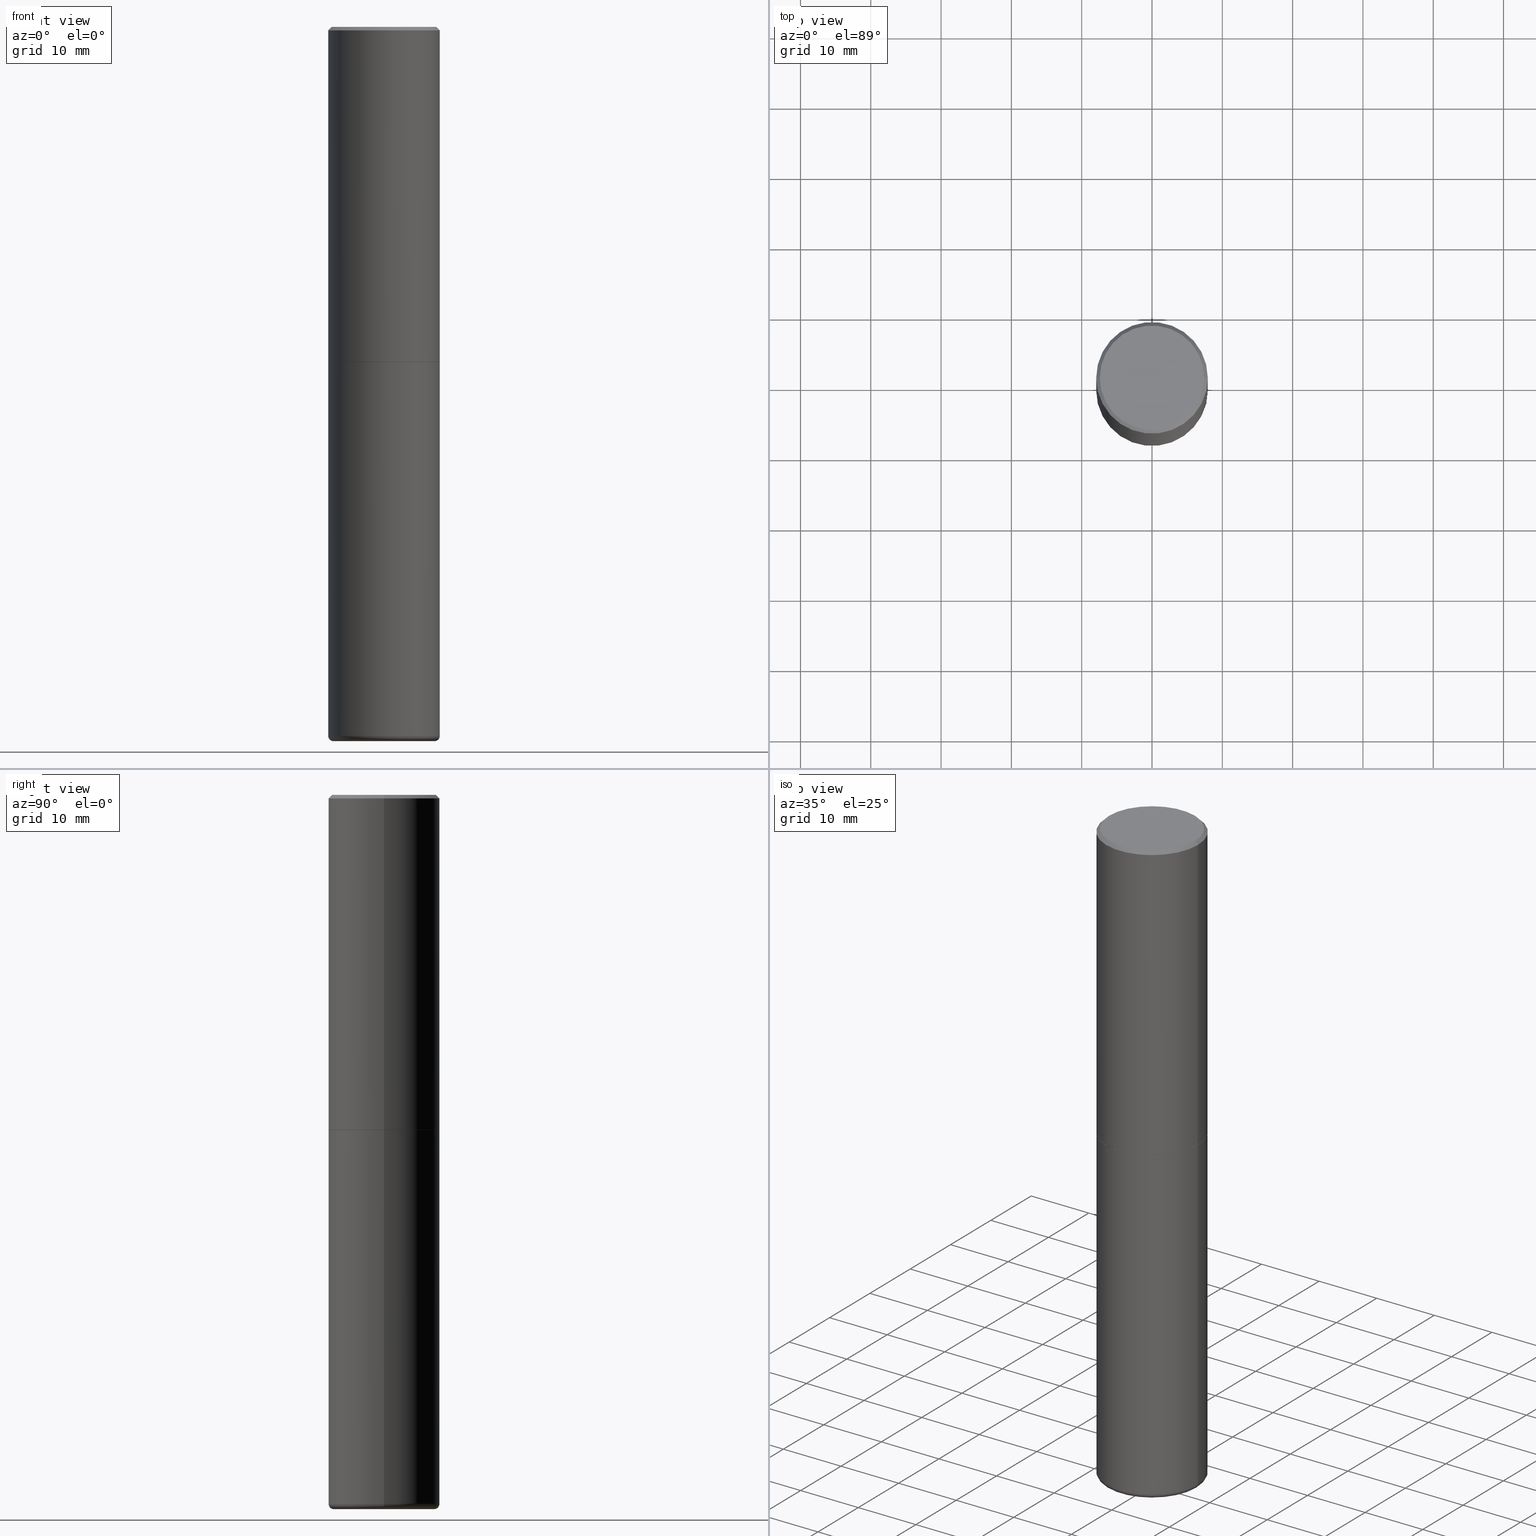
[diagram: canonical four-view strip — front | top / right | iso, engineering-drawing reading convention]
A machine part, canonical four-view strip (front | top / right | iso — engineering-drawing reading convention). The complete STEP part file that produces these views, byte-faithful:
ISO-10303-21;
HEADER;
FILE_DESCRIPTION (( 'STEP AP203' ),
    '1' );
FILE_NAME ('33473.STEP',
    '2022-11-02T20:13:39',
    ( '' ),
    ( '' ),
    'SwSTEP 2.0',
    'SolidWorks 2022',
    '' );
FILE_SCHEMA (( 'CONFIG_CONTROL_DESIGN' ));
ENDSEC;

DATA;
#1 = AXIS2_PLACEMENT_3D ( 'NONE', #83, #160, #425 ) ;
#2 = SECURITY_CLASSIFICATION ( '', '', #232 ) ;
#3 = DATE_AND_TIME ( #228, #132 ) ;
#4 = CYLINDRICAL_SURFACE ( 'NONE', #440, 0.3125000000000000000 ) ;
#5 = DIRECTION ( 'NONE',  ( 2.445468806185136597E-29, -3.491481338843145583E-15, -1.000000000000000000 ) ) ;
#6 = CARTESIAN_POINT ( 'NONE',  ( 0.3125000000000000000, -8.725211865769012469E-15, -1.874000000000000110 ) ) ;
#7 = ORIENTED_EDGE ( 'NONE', *, *, #211, .T. ) ;
#8 = CC_DESIGN_DATE_AND_TIME_ASSIGNMENT ( #3, #390, ( #338 ) ) ;
#9 = DIRECTION ( 'NONE',  ( 2.445468806185136597E-29, -3.491481338843145583E-15, -1.000000000000000000 ) ) ;
#10 = VECTOR ( 'NONE', #282, 39.37007874015748854 ) ;
#11 = ORIENTED_EDGE ( 'NONE', *, *, #478, .F. ) ;
#12 = VECTOR ( 'NONE', #355, 39.37007874015748143 ) ;
#13 = DIRECTION ( 'NONE',  ( -1.000000000000000000, 6.982962677686263555E-15, 0.000000000000000000 ) ) ;
#14 = CARTESIAN_POINT ( 'NONE',  ( 9.708513954033757613E-29, -1.386118490355461518E-14, -3.970001142308074993 ) ) ;
#15 = DIRECTION ( 'NONE',  ( 1.000000000000000000, -6.982962677686262766E-15, 0.000000000000000000 ) ) ;
#16 = CIRCLE ( 'NONE', #90, 0.3125000000000000000 ) ;
#17 = VECTOR ( 'NONE', #173, 39.37007874015748143 ) ;
#18 = EDGE_LOOP ( 'NONE', ( #43, #33, #41, #244 ) ) ;
#19 = DIRECTION ( 'NONE',  ( -2.445468806185136597E-29, 3.491481338843145583E-15, 1.000000000000000000 ) ) ;
#20 = EDGE_CURVE ( 'NONE', #361, #446, #470, .T. ) ;
#21 = VERTEX_POINT ( 'NONE', #6 ) ;
#22 = CONICAL_SURFACE ( 'NONE', #256, 0.3114999999999999991, 0.7853981633974141952 ) ;
#23 = ADVANCED_FACE ( 'NONE', ( #159 ), #315, .F. ) ;
#24 = CC_DESIGN_SECURITY_CLASSIFICATION ( #2, ( #146 ) ) ;
#25 = EDGE_LOOP ( 'NONE', ( #151, #26, #77 ) ) ;
#26 = ORIENTED_EDGE ( 'NONE', *, *, #424, .T. ) ;
#27 = CARTESIAN_POINT ( 'NONE',  ( 0.3114999999999999991, -8.721720384430171040E-15, -1.875000000000000000 ) ) ;
#28 = ORIENTED_EDGE ( 'NONE', *, *, #291, .T. ) ;
#29 = APPLICATION_PROTOCOL_DEFINITION ( 'international standard', 'config_control_design', 1994, #330 ) ;
#30 = AXIS2_PLACEMENT_3D ( 'NONE', #64, #31, #35 ) ;
#31 = DIRECTION ( 'NONE',  ( -2.445468806185136597E-29, 3.491481338843145583E-15, 1.000000000000000000 ) ) ;
#32 = DIRECTION ( 'NONE',  ( -1.000000000000000000, 6.982962677686267499E-15, 0.000000000000000000 ) ) ;
#33 = ORIENTED_EDGE ( 'NONE', *, *, #181, .T. ) ;
#34 = CALENDAR_DATE ( 2022, 2, 11 ) ;
#35 = DIRECTION ( 'NONE',  ( 1.000000000000000000, -6.982962677686269077E-15, 0.000000000000000000 ) ) ;
#36 = EDGE_CURVE ( 'NONE', #461, #135, #275, .T. ) ;
#37 = ORIENTED_EDGE ( 'NONE', *, *, #351, .T. ) ;
#38 = DIRECTION ( 'NONE',  ( 0.000000000000000000, 0.000000000000000000, 1.000000000000000000 ) ) ;
#39 = ADVANCED_FACE ( 'NONE', ( #438 ), #22, .T. ) ;
#40 = ADVANCED_FACE ( 'NONE', ( #252 ), #190, .F. ) ;
#41 = ORIENTED_EDGE ( 'NONE', *, *, #324, .T. ) ;
#42 = DIRECTION ( 'NONE',  ( -2.445468806185136597E-29, 3.491481338843145583E-15, 1.000000000000000000 ) ) ;
#43 = ORIENTED_EDGE ( 'NONE', *, *, #291, .F. ) ;
#44 = DIRECTION ( 'NONE',  ( 2.445468806185136597E-29, -3.491481338843145583E-15, -1.000000000000000000 ) ) ;
#45 = CARTESIAN_POINT ( 'NONE',  ( 9.781163893102952940E-29, -1.396490976231651766E-14, -3.999709122587949750 ) ) ;
#46 = EDGE_LOOP ( 'NONE', ( #113, #28 ) ) ;
#47 = VECTOR ( 'NONE', #240, 39.37007874015748143 ) ;
#48 = CARTESIAN_POINT ( 'NONE',  ( -0.2822382039350491700, -1.180062057703830648E-14, -4.000000000000000000 ) ) ;
#49 = ADVANCED_FACE ( 'NONE', ( #91 ), #376, .T. ) ;
#50 = APPROVAL ( #387, 'UNSPECIFIED' ) ;
#51 = MANIFOLD_SOLID_BREP ( 'Body-Move/Copy2[1]', #61 ) ;
#52 = DIRECTION ( 'NONE',  ( -2.445468806185136597E-29, 3.491481338843145583E-15, 1.000000000000000000 ) ) ;
#53 = ORIENTED_EDGE ( 'NONE', *, *, #283, .T. ) ;
#54 = VECTOR ( 'NONE', #227, 39.37007874015748854 ) ;
#55 = DIRECTION ( 'NONE',  ( -6.982962677686266711E-15, -1.000000000000000000, 3.491481338843145583E-15 ) ) ;
#56 = APPROVAL_PERSON_ORGANIZATION ( #417, #141, #484 ) ;
#57 = CIRCLE ( 'NONE', #433, 0.3114999999999999991 ) ;
#58 = ORIENTED_EDGE ( 'NONE', *, *, #424, .F. ) ;
#59 = DIRECTION ( 'NONE',  ( -2.445468806185136597E-29, 3.491481338843145583E-15, 1.000000000000000000 ) ) ;
#60 = ADVANCED_FACE ( 'NONE', ( #436 ), #99, .F. ) ;
#61 = CLOSED_SHELL ( 'NONE', ( #297, #409, #274, #40, #140, #60, #459, #49, #447 ) ) ;
#62 = EDGE_LOOP ( 'NONE', ( #58, #407, #323 ) ) ;
#63 = AXIS2_PLACEMENT_3D ( 'NONE', #375, #321, #491 ) ;
#64 = CARTESIAN_POINT ( 'NONE',  ( 9.708513954033757613E-29, -1.386118490355461518E-14, -3.970001142308074993 ) ) ;
#65 = EDGE_CURVE ( 'NONE', #446, #96, #242, .T. ) ;
#66 = PERSON_AND_ORGANIZATION_ROLE ( 'classification_officer' ) ;
#67 = PLANE ( 'NONE',  #342 ) ;
#68 = FACE_OUTER_BOUND ( 'NONE', #88, .T. ) ;
#69 = ORIENTED_EDGE ( 'NONE', *, *, #312, .T. ) ;
#70 = APPROVAL_DATE_TIME ( #345, #141 ) ;
#71 = EDGE_CURVE ( 'NONE', #185, #329, #57, .T. ) ;
#72 = CIRCLE ( 'NONE', #363, 0.02999999999999978378 ) ;
#73 = AXIS2_PLACEMENT_3D ( 'NONE', #301, #38, #150 ) ;
#74 = DIRECTION ( 'NONE',  ( 2.445468806185136597E-29, -3.491481338843145583E-15, -1.000000000000000000 ) ) ;
#75 = CC_DESIGN_PERSON_AND_ORGANIZATION_ASSIGNMENT ( #308, #199, ( #335 ) ) ;
#76 = DIRECTION ( 'NONE',  ( -2.445468806185136877E-29, 3.491481338843145188E-15, 1.000000000000000000 ) ) ;
#77 = ORIENTED_EDGE ( 'NONE', *, *, #65, .F. ) ;
#78 = PERSON_AND_ORGANIZATION ( #418, #371 ) ;
#79 = FACE_OUTER_BOUND ( 'NONE', #139, .T. ) ;
#80 = ORIENTED_EDGE ( 'NONE', *, *, #283, .F. ) ;
#81 = EDGE_CURVE ( 'NONE', #329, #21, #326, .T. ) ;
#82 = CARTESIAN_POINT ( 'NONE',  ( 4.890937612370308191E-31, -6.982962677686342145E-17, -0.02000000000000014613 ) ) ;
#83 = CARTESIAN_POINT ( 'NONE',  ( 4.585254011597131119E-29, -6.546527510330898707E-15, -1.875000000000000000 ) ) ;
#84 = CIRCLE ( 'NONE', #164, 0.3125000000000000000 ) ;
#85 = CONICAL_SURFACE ( 'NONE', #165, 0.3124999999999991673, 0.7853981633974485010 ) ;
#86 = DIRECTION ( 'NONE',  ( -0.7071067811865476838, 2.468850131082258638E-15, -0.7071067811865473507 ) ) ;
#87 = FACE_OUTER_BOUND ( 'NONE', #373, .T. ) ;
#88 = EDGE_LOOP ( 'NONE', ( #477, #267, #53, #204 ) ) ;
#89 = DIRECTION ( 'NONE',  ( 1.000000000000000000, -6.982962677686266711E-15, 4.876067333457705732E-29 ) ) ;
#90 = AXIS2_PLACEMENT_3D ( 'NONE', #264, #336, #108 ) ;
#91 = FACE_OUTER_BOUND ( 'NONE', #126, .T. ) ;
#92 = EDGE_CURVE ( 'NONE', #492, #143, #84, .T. ) ;
#93 = CARTESIAN_POINT ( 'NONE',  ( 9.759907823550939351E-29, -1.393456172843839092E-14, -3.991017100224690584 ) ) ;
#94 = ORIENTED_EDGE ( 'NONE', *, *, #382, .T. ) ;
#95 = CC_DESIGN_PERSON_AND_ORGANIZATION_ASSIGNMENT ( #236, #490, ( #338 ) ) ;
#96 = VERTEX_POINT ( 'NONE', #187 ) ;
#97 = VECTOR ( 'NONE', #142, 39.37007874015748854 ) ;
#98 = AXIS2_PLACEMENT_3D ( 'NONE', #82, #347, #400 ) ;
#99 = PLANE ( 'NONE',  #309 ) ;
#100 = EDGE_CURVE ( 'NONE', #450, #404, #16, .T. ) ;
#101 = DIRECTION ( 'NONE',  ( -1.000000000000000000, 7.105427357600977404E-15, 0.000000000000000000 ) ) ;
#102 = DIRECTION ( 'NONE',  ( -2.445468806185136597E-29, 3.491481338843145583E-15, 1.000000000000000000 ) ) ;
#103 = ORIENTED_EDGE ( 'NONE', *, *, #65, .T. ) ;
#104 = CIRCLE ( 'NONE', #63, 0.2822382039350491700 ) ;
#105 = VERTEX_POINT ( 'NONE', #341 ) ;
#106 = SHAPE_DEFINITION_REPRESENTATION ( #184, #295 ) ;
#107 = EDGE_CURVE ( 'NONE', #399, #143, #155, .T. ) ;
#108 = DIRECTION ( 'NONE',  ( 1.000000000000000000, -6.982962677686265133E-15, 0.000000000000000000 ) ) ;
#109 = DESIGN_CONTEXT ( 'detailed design', #330, 'design' ) ;
#110 = DIRECTION ( 'NONE',  ( 1.000000000000000000, -6.982962677686269077E-15, 4.883557194083114022E-29 ) ) ;
#111 = AXIS2_PLACEMENT_3D ( 'NONE', #168, #210, #429 ) ;
#112 = LINE ( 'NONE', #430, #434 ) ;
#113 = ORIENTED_EDGE ( 'NONE', *, *, #337, .T. ) ;
#114 = DIRECTION ( 'NONE',  ( -1.000000000000000000, 6.982962677686267499E-15, 0.000000000000000000 ) ) ;
#115 = ORIENTED_EDGE ( 'NONE', *, *, #167, .T. ) ;
#116 = FACE_OUTER_BOUND ( 'NONE', #265, .T. ) ;
#117 = CARTESIAN_POINT ( 'NONE',  ( 9.781163893102952940E-29, -1.396490976231651766E-14, -3.999709122587949750 ) ) ;
#118 = ADVANCED_FACE ( 'NONE', ( #419 ), #67, .F. ) ;
#119 = DIRECTION ( 'NONE',  ( 2.438088387897960049E-29, -3.491481338843145188E-15, -1.000000000000000000 ) ) ;
#120 = DIRECTION ( 'NONE',  ( -2.445468806185136597E-29, 3.491481338843145583E-15, 1.000000000000000000 ) ) ;
#121 = CIRCLE ( 'NONE', #422, 0.2822382039350491700 ) ;
#122 = FACE_OUTER_BOUND ( 'NONE', #18, .T. ) ;
#123 = CIRCLE ( 'NONE', #30, 0.3125000000000000000 ) ;
#124 = LINE ( 'NONE', #365, #17 ) ;
#125 = LINE ( 'NONE', #208, #285 ) ;
#126 = EDGE_LOOP ( 'NONE', ( #255, #356, #426, #318 ) ) ;
#127 = DIRECTION ( 'NONE',  ( -2.445468806185136597E-29, 3.491481338843145583E-15, 1.000000000000000000 ) ) ;
#128 = CARTESIAN_POINT ( 'NONE',  ( -0.2489069539350491633, -1.222680179277149425E-14, -3.999709122587949750 ) ) ;
#129 = DIRECTION ( 'NONE',  ( -2.445468806185136597E-29, 3.491481338843145583E-15, 1.000000000000000000 ) ) ;
#130 = CARTESIAN_POINT ( 'NONE',  ( 4.582808542790945516E-29, -6.543036028992054911E-15, -1.874000000000000110 ) ) ;
#131 = CARTESIAN_POINT ( 'NONE',  ( 4.585254011597131119E-29, -6.546527510330898707E-15, -1.875000000000000000 ) ) ;
#132 = LOCAL_TIME ( 16, 13, 39.00000000000000000, #263 ) ;
#133 = ORIENTED_EDGE ( 'NONE', *, *, #92, .T. ) ;
#134 = ORIENTED_EDGE ( 'NONE', *, *, #71, .T. ) ;
#135 = VERTEX_POINT ( 'NONE', #266 ) ;
#136 = AXIS2_PLACEMENT_3D ( 'NONE', #463, #9, #467 ) ;
#137 = APPROVAL_PERSON_ORGANIZATION ( #393, #287, #303 ) ;
#138 = DIRECTION ( 'NONE',  ( -2.445468806185136597E-29, 3.491481338843145583E-15, 1.000000000000000000 ) ) ;
#139 = EDGE_LOOP ( 'NONE', ( #133, #290, #218, #80 ) ) ;
#140 = ADVANCED_FACE ( 'NONE', ( #147 ), #258, .F. ) ;
#141 = APPROVAL ( #239, 'UNSPECIFIED' ) ;
#142 = DIRECTION ( 'NONE',  ( -0.7071067811865232589, 7.493145998870265808E-15, 0.7071067811865715536 ) ) ;
#143 = VERTEX_POINT ( 'NONE', #389 ) ;
#144 = COORDINATED_UNIVERSAL_TIME_OFFSET ( 5, 0, .BEHIND. ) ;
#145 = AXIS2_PLACEMENT_3D ( 'NONE', #45, #209, #175 ) ;
#146 = PRODUCT_DEFINITION_FORMATION_WITH_SPECIFIED_SOURCE ( 'ANY', '', #335, .NOT_KNOWN. ) ;
#147 = FACE_OUTER_BOUND ( 'NONE', #62, .T. ) ;
#148 = DATE_TIME_ROLE ( 'classification_date' ) ;
#149 = DIRECTION ( 'NONE',  ( 1.000000000000000000, -6.982962677686265133E-15, 0.000000000000000000 ) ) ;
#150 = DIRECTION ( 'NONE',  ( 1.000000000000000000, 0.000000000000000000, 0.000000000000000000 ) ) ;
#151 = ORIENTED_EDGE ( 'NONE', *, *, #20, .F. ) ;
#152 = EDGE_CURVE ( 'NONE', #143, #404, #183, .T. ) ;
#153 = CALENDAR_DATE ( 2022, 2, 11 ) ;
#154 = DIRECTION ( 'NONE',  ( 1.000000000000000000, -6.982962677686266711E-15, 4.876176775795935232E-29 ) ) ;
#155 = CIRCLE ( 'NONE', #233, 0.02999999999999978378 ) ;
#156 = APPROVAL_STATUS ( 'not_yet_approved' ) ;
#157 = DIRECTION ( 'NONE',  ( -2.445468806185136597E-29, 3.491481338843145583E-15, 1.000000000000000000 ) ) ;
#158 = EDGE_CURVE ( 'NONE', #143, #492, #123, .T. ) ;
#159 = FACE_OUTER_BOUND ( 'NONE', #46, .T. ) ;
#160 = DIRECTION ( 'NONE',  ( -2.445468806185136597E-29, 3.491481338843145583E-15, 1.000000000000000000 ) ) ;
#161 = VERTEX_POINT ( 'NONE', #454 ) ;
#162 = CLOSED_SHELL ( 'NONE', ( #39, #176, #219, #473, #248, #200, #118, #23 ) ) ;
#163 = DIRECTION ( 'NONE',  ( 1.000000000000000000, -6.982962677686266711E-15, 4.876176775795936353E-29 ) ) ;
#164 = AXIS2_PLACEMENT_3D ( 'NONE', #261, #138, #410 ) ;
#165 = AXIS2_PLACEMENT_3D ( 'NONE', #230, #44, #32 ) ;
#166 = ORIENTED_EDGE ( 'NONE', *, *, #478, .T. ) ;
#167 = EDGE_CURVE ( 'NONE', #185, #235, #296, .T. ) ;
#168 = CARTESIAN_POINT ( 'NONE',  ( 4.585254011597131119E-29, -6.546527510330898707E-15, -1.875000000000000000 ) ) ;
#169 = CC_DESIGN_PERSON_AND_ORGANIZATION_ASSIGNMENT ( #78, #66, ( #2 ) ) ;
#170 = CARTESIAN_POINT ( 'NONE',  ( 0.000000000000000000, 0.000000000000000000, 0.000000000000000000 ) ) ;
#171 = DIRECTION ( 'NONE',  ( -2.445468806185136597E-29, 3.491481338843145583E-15, 1.000000000000000000 ) ) ;
#172 = ORIENTED_EDGE ( 'NONE', *, *, #397, .F. ) ;
#173 = DIRECTION ( 'NONE',  ( 0.9999619230641714207, -6.890705306874796929E-15, -0.008726535498360797616 ) ) ;
#174 = EDGE_CURVE ( 'NONE', #329, #185, #221, .T. ) ;
#175 = DIRECTION ( 'NONE',  ( 1.000000000000000000, -6.982962677686262766E-15, 0.000000000000000000 ) ) ;
#176 = ADVANCED_FACE ( 'NONE', ( #449 ), #413, .T. ) ;
#177 =( GEOMETRIC_REPRESENTATION_CONTEXT ( 3 ) GLOBAL_UNCERTAINTY_ASSIGNED_CONTEXT ( ( #310 ) ) GLOBAL_UNIT_ASSIGNED_CONTEXT ( ( #367, #443, #340 ) ) REPRESENTATION_CONTEXT ( 'NONE', 'WORKASPACE' ) );
#178 = LENGTH_MEASURE_WITH_UNIT ( LENGTH_MEASURE( 0.02539999999999999897 ), #374 );
#179 = ORIENTED_EDGE ( 'NONE', *, *, #223, .F. ) ;
#180 = CARTESIAN_POINT ( 'NONE',  ( 0.3125000000000000000, -1.604336074033157510E-14, -3.970001142308074993 ) ) ;
#181 = EDGE_CURVE ( 'NONE', #161, #270, #483, .T. ) ;
#182 = CIRCLE ( 'NONE', #456, 0.3124999999999991673 ) ;
#183 = LINE ( 'NONE', #229, #319 ) ;
#184 = PRODUCT_DEFINITION_SHAPE ( 'NONE', 'NONE',  #338 ) ;
#185 = VERTEX_POINT ( 'NONE', #343 ) ;
#186 = COORDINATED_UNIVERSAL_TIME_OFFSET ( 5, 0, .BEHIND. ) ;
#187 = CARTESIAN_POINT ( 'NONE',  ( 0.2489069539350491633, -1.567253542141933323E-14, -3.999709122587949750 ) ) ;
#188 = EDGE_LOOP ( 'NONE', ( #166, #432, #380, #172 ) ) ;
#189 = DATE_AND_TIME ( #34, #284 ) ;
#190 = CONICAL_SURFACE ( 'NONE', #333, 0.2489069539350491633, 1.535889741755009252 ) ;
#191 = AXIS2_PLACEMENT_3D ( 'NONE', #170, #325, #163 ) ;
#192 = CIRCLE ( 'NONE', #216, 0.3125000000000000000 ) ;
#193 = DIRECTION ( 'NONE',  ( 0.7071067811865476838, -7.319954787623257623E-15, -0.7071067811865473507 ) ) ;
#194 = DIRECTION ( 'NONE',  ( 0.9993908270190957621, -6.978169709227544643E-15, -0.03489949670250174635 ) ) ;
#195 = APPLICATION_PROTOCOL_DEFINITION ( 'international standard', 'config_control_design', 1994, #482 ) ;
#196 = ORIENTED_EDGE ( 'NONE', *, *, #81, .F. ) ;
#197 = COORDINATED_UNIVERSAL_TIME_OFFSET ( 5, 0, .BEHIND. ) ;
#198 = LINE ( 'NONE', #268, #47 ) ;
#199 = PERSON_AND_ORGANIZATION_ROLE ( 'design_owner' ) ;
#200 = ADVANCED_FACE ( 'NONE', ( #243 ), #408, .T. ) ;
#201 = CC_DESIGN_PERSON_AND_ORGANIZATION_ASSIGNMENT ( #305, #415, ( #146 ) ) ;
#202 = CARTESIAN_POINT ( 'NONE',  ( 0.000000000000000000, 0.000000000000000000, 0.000000000000000000 ) ) ;
#203 = CARTESIAN_POINT ( 'NONE',  ( -0.2489069539350491633, -1.222680179277149425E-14, -3.999709122587949750 ) ) ;
#204 = ORIENTED_EDGE ( 'NONE', *, *, #312, .F. ) ;
#205 = VECTOR ( 'NONE', #193, 39.37007874015748143 ) ;
#206 = CARTESIAN_POINT ( 'NONE',  ( 4.585254011597131119E-29, -6.546527510330898707E-15, -1.875000000000000000 ) ) ;
#207 = APPROVAL_PERSON_ORGANIZATION ( #455, #50, #451 ) ;
#208 = CARTESIAN_POINT ( 'NONE',  ( -0.3124999999999996114, 2.220446049250310320E-15, -1.537167215704655990E-29 ) ) ;
#209 = DIRECTION ( 'NONE',  ( -2.445468806185136597E-29, 3.491481338843145583E-15, 1.000000000000000000 ) ) ;
#210 = DIRECTION ( 'NONE',  ( -2.445468806185136597E-29, 3.491481338843145583E-15, 1.000000000000000000 ) ) ;
#211 = EDGE_CURVE ( 'NONE', #105, #399, #121, .T. ) ;
#212 = DIRECTION ( 'NONE',  ( -1.000000000000000000, 6.982962677686265922E-15, -4.876176775795935793E-29 ) ) ;
#213 = AXIS2_PLACEMENT_3D ( 'NONE', #460, #5, #114 ) ;
#214 = AXIS2_PLACEMENT_3D ( 'NONE', #344, #327, #13 ) ;
#215 = ORIENTED_EDGE ( 'NONE', *, *, #174, .T. ) ;
#216 = AXIS2_PLACEMENT_3D ( 'NONE', #279, #352, #272 ) ;
#217 = DIRECTION ( 'NONE',  ( 2.445468806185136597E-29, -3.491481338843145583E-15, -1.000000000000000000 ) ) ;
#218 = ORIENTED_EDGE ( 'NONE', *, *, #100, .F. ) ;
#219 = ADVANCED_FACE ( 'NONE', ( #122 ), #468, .T. ) ;
#220 = DIRECTION ( 'NONE',  ( 1.000000000000000000, -6.982962677686265922E-15, 4.876176775795935793E-29 ) ) ;
#221 = CIRCLE ( 'NONE', #384, 0.3114999999999999991 ) ;
#222 = LOCAL_TIME ( 16, 13, 39.00000000000000000, #144 ) ;
#223 = EDGE_CURVE ( 'NONE', #235, #21, #192, .T. ) ;
#224 = CARTESIAN_POINT ( 'NONE',  ( -0.3114999999999999991, -4.333186888438186634E-15, -1.875000000000000000 ) ) ;
#225 = EDGE_LOOP ( 'NONE', ( #476, #288, #358, #262 ) ) ;
#226 = PERSON_AND_ORGANIZATION_ROLE ( 'design_supplier' ) ;
#227 = DIRECTION ( 'NONE',  ( 0.7071067811865232589, -2.468850131082003836E-15, 0.7071067811865715536 ) ) ;
#228 = CALENDAR_DATE ( 2022, 2, 11 ) ;
#229 = CARTESIAN_POINT ( 'NONE',  ( -0.3125000000000000000, 2.220446049250313081E-15, -1.537167215704658232E-29 ) ) ;
#230 = CARTESIAN_POINT ( 'NONE',  ( 4.890937612370308191E-31, -6.982962677686342145E-17, -0.02000000000000014613 ) ) ;
#231 = EDGE_LOOP ( 'NONE', ( #332, #134, #439, #179 ) ) ;
#232 = SECURITY_CLASSIFICATION_LEVEL ( 'unclassified' ) ;
#233 = AXIS2_PLACEMENT_3D ( 'NONE', #444, #234, #101 ) ;
#234 = DIRECTION ( 'NONE',  ( 7.105427357601001859E-15, 1.000000000000000000, -3.491481338843145583E-15 ) ) ;
#235 = VERTEX_POINT ( 'NONE', #241 ) ;
#236 = PERSON_AND_ORGANIZATION ( #418, #371 ) ;
#237 = CARTESIAN_POINT ( 'NONE',  ( 0.000000000000000000, 0.000000000000000000, 0.000000000000000000 ) ) ;
#238 = ORIENTED_EDGE ( 'NONE', *, *, #211, .F. ) ;
#239 = APPROVAL_STATUS ( 'not_yet_approved' ) ;
#240 = DIRECTION ( 'NONE',  ( -0.9999619230641714207, 6.952228252019216578E-15, -0.008726535498360797616 ) ) ;
#241 = CARTESIAN_POINT ( 'NONE',  ( -0.3125000000000000000, -1.085986778634142671E-15, -1.874000000000000110 ) ) ;
#242 = CIRCLE ( 'NONE', #145, 0.2489069539350491633 ) ;
#243 = FACE_OUTER_BOUND ( 'NONE', #231, .T. ) ;
#244 = ORIENTED_EDGE ( 'NONE', *, *, #36, .F. ) ;
#245 = FACE_OUTER_BOUND ( 'NONE', #246, .T. ) ;
#246 = EDGE_LOOP ( 'NONE', ( #7, #411, #257, #489 ) ) ;
#247 = CARTESIAN_POINT ( 'NONE',  ( 0.3114999999999999991, -8.721720384430171040E-15, -1.875000000000000000 ) ) ;
#248 = ADVANCED_FACE ( 'NONE', ( #395 ), #314, .T. ) ;
#249 = CIRCLE ( 'NONE', #294, 0.2924999999999990385 ) ;
#250 = CC_DESIGN_APPROVAL ( #50, ( #2 ) ) ;
#251 = ORIENTED_EDGE ( 'NONE', *, *, #71, .F. ) ;
#252 = FACE_OUTER_BOUND ( 'NONE', #25, .T. ) ;
#253 = EDGE_CURVE ( 'NONE', #135, #270, #322, .T. ) ;
#254 = CC_DESIGN_DATE_AND_TIME_ASSIGNMENT ( #189, #148, ( #2 ) ) ;
#255 = ORIENTED_EDGE ( 'NONE', *, *, #107, .F. ) ;
#256 = AXIS2_PLACEMENT_3D ( 'NONE', #131, #59, #286 ) ;
#257 = ORIENTED_EDGE ( 'NONE', *, *, #92, .F. ) ;
#258 = CONICAL_SURFACE ( 'NONE', #485, 0.2489069539350491633, 1.535889741755009252 ) ;
#259 = DIRECTION ( 'NONE',  ( 2.438088387897960049E-29, -3.491481338843145188E-15, -1.000000000000000000 ) ) ;
#260 = EDGE_LOOP ( 'NONE', ( #372, #475, #452, #299 ) ) ;
#261 = CARTESIAN_POINT ( 'NONE',  ( 9.708513954033757613E-29, -1.386118490355461518E-14, -3.970001142308074993 ) ) ;
#262 = ORIENTED_EDGE ( 'NONE', *, *, #253, .T. ) ;
#263 = COORDINATED_UNIVERSAL_TIME_OFFSET ( 5, 0, .BEHIND. ) ;
#264 = CARTESIAN_POINT ( 'NONE',  ( 4.585254011597131119E-29, -6.546527510330898707E-15, -1.875000000000000000 ) ) ;
#265 = EDGE_LOOP ( 'NONE', ( #103, #37, #414, #396 ) ) ;
#266 = CARTESIAN_POINT ( 'NONE',  ( -0.3124999999999991673, 2.112346210000089527E-15, -0.02000000000000014613 ) ) ;
#267 = ORIENTED_EDGE ( 'NONE', *, *, #158, .T. ) ;
#268 = CARTESIAN_POINT ( 'NONE',  ( -0.2822382039350491700, -1.199506651107693015E-14, -4.000000000000000000 ) ) ;
#269 = EDGE_CURVE ( 'NONE', #446, #399, #198, .T. ) ;
#270 = VERTEX_POINT ( 'NONE', #276 ) ;
#271 = COORDINATED_UNIVERSAL_TIME_OFFSET ( 5, 0, .BEHIND. ) ;
#272 = DIRECTION ( 'NONE',  ( 1.000000000000000000, -6.982962677686265133E-15, 0.000000000000000000 ) ) ;
#273 = EDGE_LOOP ( 'NONE', ( #215, #115, #11, #196 ) ) ;
#274 = ADVANCED_FACE ( 'NONE', ( #79 ), #4, .T. ) ;
#275 = LINE ( 'NONE', #427, #442 ) ;
#276 = CARTESIAN_POINT ( 'NONE',  ( 0.3124999999999991673, -2.213735251080461389E-15, -0.02000000000000014613 ) ) ;
#277 = AXIS2_PLACEMENT_3D ( 'NONE', #334, #379, #339 ) ;
#278 = DIRECTION ( 'NONE',  ( -2.445468806185136597E-29, 3.491481338843145583E-15, 1.000000000000000000 ) ) ;
#279 = CARTESIAN_POINT ( 'NONE',  ( 4.582808542790945516E-29, -6.543036028992054911E-15, -1.874000000000000110 ) ) ;
#280 = LINE ( 'NONE', #406, #412 ) ;
#281 = CARTESIAN_POINT ( 'NONE',  ( 0.2825000000000002509, -1.583387186000098521E-14, -3.970001142308074993 ) ) ;
#282 = DIRECTION ( 'NONE',  ( -0.9993908270190957621, 6.856857904024554104E-15, -0.03489949670250174635 ) ) ;
#283 = EDGE_CURVE ( 'NONE', #492, #450, #350, .T. ) ;
#284 = LOCAL_TIME ( 16, 13, 39.00000000000000000, #186 ) ;
#285 = VECTOR ( 'NONE', #472, 39.37007874015748143 ) ;
#286 = DIRECTION ( 'NONE',  ( 1.000000000000000000, -6.982962677686265922E-15, 0.000000000000000000 ) ) ;
#287 = APPROVAL ( #156, 'UNSPECIFIED' ) ;
#288 = ORIENTED_EDGE ( 'NONE', *, *, #337, .F. ) ;
#289 = MANIFOLD_SOLID_BREP ( 'Body-Move/Copy2[2]', #162 ) ;
#290 = ORIENTED_EDGE ( 'NONE', *, *, #152, .T. ) ;
#291 = EDGE_CURVE ( 'NONE', #161, #461, #388, .T. ) ;
#292 = AXIS2_PLACEMENT_3D ( 'NONE', #462, #119, #402 ) ;
#293 = CONICAL_SURFACE ( 'NONE', #136, 0.2822382039350491700, 1.562069680534938110 ) ;
#294 = AXIS2_PLACEMENT_3D ( 'NONE', #431, #19, #89 ) ;
#295 = ADVANCED_BREP_SHAPE_REPRESENTATION ( '33473', ( #51, #289, #73 ), #177 ) ;
#296 = LINE ( 'NONE', #224, #97 ) ;
#297 = ADVANCED_FACE ( 'NONE', ( #116 ), #293, .F. ) ;
#298 = DIRECTION ( 'NONE',  ( -1.000000000000000000, 6.982962677686262766E-15, 0.000000000000000000 ) ) ;
#299 = ORIENTED_EDGE ( 'NONE', *, *, #253, .F. ) ;
#300 = AXIS2_PLACEMENT_3D ( 'NONE', #130, #420, #149 ) ;
#301 = CARTESIAN_POINT ( 'NONE',  ( 0.000000000000000000, 0.000000000000000000, 0.000000000000000000 ) ) ;
#302 = DIRECTION ( 'NONE',  ( -2.445468806185136877E-29, 3.491481338843145188E-15, 1.000000000000000000 ) ) ;
#303 = APPROVAL_ROLE ( '' ) ;
#304 = CARTESIAN_POINT ( 'NONE',  ( 0.3125000000000000000, -8.728703347107857054E-15, -1.875000000000000000 ) ) ;
#305 = PERSON_AND_ORGANIZATION ( #418, #371 ) ;
#306 = EDGE_CURVE ( 'NONE', #105, #492, #72, .T. ) ;
#307 = CARTESIAN_POINT ( 'NONE',  ( -0.3125000000000000000, -7.983410157692443863E-15, -1.875000000000000000 ) ) ;
#308 = PERSON_AND_ORGANIZATION ( #418, #371 ) ;
#309 = AXIS2_PLACEMENT_3D ( 'NONE', #331, #259, #212 ) ;
#310 = UNCERTAINTY_MEASURE_WITH_UNIT (LENGTH_MEASURE( 1.000000000000000082E-05 ), #367, 'distance_accuracy_value', 'NONE');
#311 = EDGE_LOOP ( 'NONE', ( #366, #251 ) ) ;
#312 = EDGE_CURVE ( 'NONE', #404, #450, #370, .T. ) ;
#313 = DATE_AND_TIME ( #349, #222 ) ;
#314 = CYLINDRICAL_SURFACE ( 'NONE', #480, 0.3124999999999996114 ) ;
#315 = PLANE ( 'NONE',  #292 ) ;
#316 = DIRECTION ( 'NONE',  ( 1.000000000000000000, -6.982962677686266711E-15, 4.876176775795936353E-29 ) ) ;
#317 = CARTESIAN_POINT ( 'NONE',  ( 9.781875224740546387E-29, -1.396592535537258233E-14, -4.000000000000000000 ) ) ;
#318 = ORIENTED_EDGE ( 'NONE', *, *, #158, .F. ) ;
#319 = VECTOR ( 'NONE', #302, 39.37007874015748143 ) ;
#320 = AXIS2_PLACEMENT_3D ( 'NONE', #471, #129, #15 ) ;
#321 = DIRECTION ( 'NONE',  ( -2.445468806185136597E-29, 3.491481338843145583E-15, 1.000000000000000000 ) ) ;
#322 = CIRCLE ( 'NONE', #98, 0.3124999999999991673 ) ;
#323 = ORIENTED_EDGE ( 'NONE', *, *, #382, .F. ) ;
#324 = EDGE_CURVE ( 'NONE', #270, #135, #182, .T. ) ;
#325 = DIRECTION ( 'NONE',  ( -2.445468806185136597E-29, 3.491481338843145583E-15, 1.000000000000000000 ) ) ;
#326 = LINE ( 'NONE', #27, #54 ) ;
#327 = DIRECTION ( 'NONE',  ( 2.445468806185136597E-29, -3.491481338843145583E-15, -1.000000000000000000 ) ) ;
#328 = TOROIDAL_SURFACE ( 'NONE', #377, 0.2825000000000002509, 0.02999999999999979072 ) ;
#329 = VERTEX_POINT ( 'NONE', #247 ) ;
#330 = APPLICATION_CONTEXT ( 'configuration controlled 3d designs of mechanical parts and assemblies' ) ;
#331 = CARTESIAN_POINT ( 'NONE',  ( 2.182175836777004101E-15, 0.3124999999999934497, -1.875000000000001110 ) ) ;
#332 = ORIENTED_EDGE ( 'NONE', *, *, #167, .F. ) ;
#333 = AXIS2_PLACEMENT_3D ( 'NONE', #117, #217, #441 ) ;
#334 = CARTESIAN_POINT ( 'NONE',  ( 0.000000000000000000, 0.000000000000000000, 0.000000000000000000 ) ) ;
#335 = PRODUCT ( '33473', '33473', '', ( #421 ) ) ;
#336 = DIRECTION ( 'NONE',  ( -2.445468806185136597E-29, 3.491481338843145583E-15, 1.000000000000000000 ) ) ;
#337 = EDGE_CURVE ( 'NONE', #461, #161, #249, .T. ) ;
#338 = PRODUCT_DEFINITION ( 'UNKNOWN', '', #146, #109 ) ;
#339 = DIRECTION ( 'NONE',  ( 1.000000000000000000, -6.982962677686266711E-15, 4.876176775795935232E-29 ) ) ;
#340 =( NAMED_UNIT ( * ) SI_UNIT ( $, .STERADIAN. ) SOLID_ANGLE_UNIT ( ) );
#341 = CARTESIAN_POINT ( 'NONE',  ( 0.2822382039350491700, -1.593678419966823451E-14, -4.000000000000000000 ) ) ;
#342 = AXIS2_PLACEMENT_3D ( 'NONE', #481, #487, #220 ) ;
#343 = CARTESIAN_POINT ( 'NONE',  ( -0.3114999999999999991, -4.327888434089964232E-15, -1.875000000000000000 ) ) ;
#344 = CARTESIAN_POINT ( 'NONE',  ( 9.781875224740546387E-29, -1.396592535537258233E-14, -4.000000000000000000 ) ) ;
#345 = DATE_AND_TIME ( #353, #466 ) ;
#346 = PRODUCT_RELATED_PRODUCT_CATEGORY ( 'detail', '', ( #335 ) ) ;
#347 = DIRECTION ( 'NONE',  ( -2.445468806185136597E-29, 3.491481338843145583E-15, 1.000000000000000000 ) ) ;
#348 = EDGE_LOOP ( 'NONE', ( #385, #69 ) ) ;
#349 = CALENDAR_DATE ( 2022, 2, 11 ) ;
#350 = LINE ( 'NONE', #394, #12 ) ;
#351 = EDGE_CURVE ( 'NONE', #96, #105, #124, .T. ) ;
#352 = DIRECTION ( 'NONE',  ( -2.445468806185136597E-29, 3.491481338843145583E-15, 1.000000000000000000 ) ) ;
#353 = CALENDAR_DATE ( 2022, 2, 11 ) ;
#354 = CIRCLE ( 'NONE', #300, 0.3125000000000000000 ) ;
#355 = DIRECTION ( 'NONE',  ( -2.445468806185136877E-29, 3.491481338843145188E-15, 1.000000000000000000 ) ) ;
#356 = ORIENTED_EDGE ( 'NONE', *, *, #392, .T. ) ;
#357 = DIRECTION ( 'NONE',  ( -2.445468806185136597E-29, 3.491481338843145583E-15, 1.000000000000000000 ) ) ;
#358 = ORIENTED_EDGE ( 'NONE', *, *, #36, .T. ) ;
#359 = DIRECTION ( 'NONE',  ( 1.000000000000000000, -6.982962677686266711E-15, 4.876067333457705732E-29 ) ) ;
#360 = CARTESIAN_POINT ( 'NONE',  ( -0.2924999999999990385, 2.077431396611657878E-15, 4.268512490086005323E-18 ) ) ;
#361 = VERTEX_POINT ( 'NONE', #93 ) ;
#362 = DIRECTION ( 'NONE',  ( 1.000000000000000000, -6.982962677686267499E-15, 0.000000000000000000 ) ) ;
#363 = AXIS2_PLACEMENT_3D ( 'NONE', #281, #55, #369 ) ;
#364 = DIRECTION ( 'NONE',  ( 1.000000000000000000, -6.982962677686265922E-15, 0.000000000000000000 ) ) ;
#365 = CARTESIAN_POINT ( 'NONE',  ( 0.2822382039350491700, -1.590221998836362153E-14, -4.000000000000000000 ) ) ;
#366 = ORIENTED_EDGE ( 'NONE', *, *, #174, .F. ) ;
#367 =( CONVERSION_BASED_UNIT ( 'INCH', #178 ) LENGTH_UNIT ( ) NAMED_UNIT ( #464 ) );
#368 = CARTESIAN_POINT ( 'NONE',  ( 9.708513954033757613E-29, -1.386118490355461518E-14, -3.970001142308074993 ) ) ;
#369 = DIRECTION ( 'NONE',  ( 1.000000000000000000, -6.982962677686253300E-15, 0.000000000000000000 ) ) ;
#370 = CIRCLE ( 'NONE', #111, 0.3125000000000000000 ) ;
#371 = ORGANIZATION ( 'UNSPECIFIED', 'UNSPECIFIED', '' ) ;
#372 = ORIENTED_EDGE ( 'NONE', *, *, #469, .F. ) ;
#373 = EDGE_LOOP ( 'NONE', ( #437, #94, #378, #238 ) ) ;
#374 =( LENGTH_UNIT ( ) NAMED_UNIT ( * ) SI_UNIT ( $, .METRE. ) );
#375 = CARTESIAN_POINT ( 'NONE',  ( 9.781875224740546387E-29, -1.396592535537258233E-14, -4.000000000000000000 ) ) ;
#376 = TOROIDAL_SURFACE ( 'NONE', #428, 0.2825000000000002509, 0.02999999999999979072 ) ;
#377 = AXIS2_PLACEMENT_3D ( 'NONE', #14, #278, #110 ) ;
#378 = ORIENTED_EDGE ( 'NONE', *, *, #269, .T. ) ;
#379 = DIRECTION ( 'NONE',  ( -2.445468806185136597E-29, 3.491481338843145583E-15, 1.000000000000000000 ) ) ;
#380 = ORIENTED_EDGE ( 'NONE', *, *, #324, .F. ) ;
#381 = PERSON_AND_ORGANIZATION ( #418, #371 ) ;
#382 = EDGE_CURVE ( 'NONE', #96, #446, #457, .T. ) ;
#383 = DIRECTION ( 'NONE',  ( 1.000000000000000000, -6.982962677686265922E-15, 0.000000000000000000 ) ) ;
#384 = AXIS2_PLACEMENT_3D ( 'NONE', #445, #102, #383 ) ;
#385 = ORIENTED_EDGE ( 'NONE', *, *, #100, .T. ) ;
#386 = LOCAL_TIME ( 16, 13, 39.00000000000000000, #197 ) ;
#387 = APPROVAL_STATUS ( 'not_yet_approved' ) ;
#388 = CIRCLE ( 'NONE', #405, 0.2924999999999990385 ) ;
#389 = CARTESIAN_POINT ( 'NONE',  ( -0.3125000000000000000, -7.983410157692443863E-15, -3.970001142308074993 ) ) ;
#390 = DATE_TIME_ROLE ( 'creation_date' ) ;
#391 = CARTESIAN_POINT ( 'NONE',  ( -1.043851414335219820E-46, 1.490343170380447200E-32, 4.268512490100411279E-18 ) ) ;
#392 = EDGE_CURVE ( 'NONE', #399, #105, #104, .T. ) ;
#393 = PERSON_AND_ORGANIZATION ( #418, #371 ) ;
#394 = CARTESIAN_POINT ( 'NONE',  ( 0.3125000000000000000, -2.182175836776958347E-15, 1.523805242436230075E-29 ) ) ;
#395 = FACE_OUTER_BOUND ( 'NONE', #260, .T. ) ;
#396 = ORIENTED_EDGE ( 'NONE', *, *, #269, .F. ) ;
#397 = EDGE_CURVE ( 'NONE', #21, #270, #280, .T. ) ;
#398 = CC_DESIGN_APPROVAL ( #141, ( #338 ) ) ;
#399 = VERTEX_POINT ( 'NONE', #48 ) ;
#400 = DIRECTION ( 'NONE',  ( 1.000000000000000000, -6.982962677686267499E-15, 0.000000000000000000 ) ) ;
#401 = FACE_OUTER_BOUND ( 'NONE', #225, .T. ) ;
#402 = DIRECTION ( 'NONE',  ( -1.000000000000000000, 6.982962677686265922E-15, -4.876176775795935793E-29 ) ) ;
#403 = CYLINDRICAL_SURFACE ( 'NONE', #191, 0.3125000000000000000 ) ;
#404 = VERTEX_POINT ( 'NONE', #307 ) ;
#405 = AXIS2_PLACEMENT_3D ( 'NONE', #391, #157, #359 ) ;
#406 = CARTESIAN_POINT ( 'NONE',  ( 0.3124999999999996114, -2.182175836776955586E-15, 1.523805242436227833E-29 ) ) ;
#407 = ORIENTED_EDGE ( 'NONE', *, *, #20, .T. ) ;
#408 = CONICAL_SURFACE ( 'NONE', #1, 0.3114999999999999991, 0.7853981633974141952 ) ;
#409 = ADVANCED_FACE ( 'NONE', ( #245 ), #328, .T. ) ;
#410 = DIRECTION ( 'NONE',  ( 1.000000000000000000, -6.982962677686269077E-15, 0.000000000000000000 ) ) ;
#411 = ORIENTED_EDGE ( 'NONE', *, *, #107, .T. ) ;
#412 = VECTOR ( 'NONE', #76, 39.37007874015748143 ) ;
#413 = CYLINDRICAL_SURFACE ( 'NONE', #277, 0.3124999999999996114 ) ;
#414 = ORIENTED_EDGE ( 'NONE', *, *, #392, .F. ) ;
#415 = PERSON_AND_ORGANIZATION_ROLE ( 'creator' ) ;
#416 = CARTESIAN_POINT ( 'NONE',  ( 0.3124999999999991673, -2.213735251080461389E-15, -0.02000000000000014613 ) ) ;
#417 = PERSON_AND_ORGANIZATION ( #418, #371 ) ;
#418 = PERSON ( 'UNSPECIFIED', 'UNSPECIFIED', 'UNSPECIFIED', ('UNSPECIFIED'), ('UNSPECIFIED'), ('UNSPECIFIED') ) ;
#419 = FACE_OUTER_BOUND ( 'NONE', #311, .T. ) ;
#420 = DIRECTION ( 'NONE',  ( -2.445468806185136597E-29, 3.491481338843145583E-15, 1.000000000000000000 ) ) ;
#421 = MECHANICAL_CONTEXT ( 'NONE', #482, 'mechanical' ) ;
#422 = AXIS2_PLACEMENT_3D ( 'NONE', #317, #357, #465 ) ;
#423 = APPROVAL_DATE_TIME ( #313, #287 ) ;
#424 = EDGE_CURVE ( 'NONE', #361, #96, #112, .T. ) ;
#425 = DIRECTION ( 'NONE',  ( 1.000000000000000000, -6.982962677686265922E-15, 0.000000000000000000 ) ) ;
#426 = ORIENTED_EDGE ( 'NONE', *, *, #306, .T. ) ;
#427 = CARTESIAN_POINT ( 'NONE',  ( -0.3124999999999991673, 2.112346210000089527E-15, -0.02000000000000014613 ) ) ;
#428 = AXIS2_PLACEMENT_3D ( 'NONE', #368, #52, #474 ) ;
#429 = DIRECTION ( 'NONE',  ( 1.000000000000000000, -6.982962677686265133E-15, 0.000000000000000000 ) ) ;
#430 = CARTESIAN_POINT ( 'NONE',  ( 0.2489069539350491633, -1.567253542141933323E-14, -3.999709122587949750 ) ) ;
#431 = CARTESIAN_POINT ( 'NONE',  ( -1.043851414335219820E-46, 1.490343170380447200E-32, 4.268512490100411279E-18 ) ) ;
#432 = ORIENTED_EDGE ( 'NONE', *, *, #469, .T. ) ;
#433 = AXIS2_PLACEMENT_3D ( 'NONE', #206, #171, #364 ) ;
#434 = VECTOR ( 'NONE', #194, 39.37007874015748854 ) ;
#435 = CARTESIAN_POINT ( 'NONE',  ( 4.890937612370308191E-31, -6.982962677686342145E-17, -0.02000000000000014613 ) ) ;
#436 = FACE_OUTER_BOUND ( 'NONE', #348, .T. ) ;
#437 = ORIENTED_EDGE ( 'NONE', *, *, #351, .F. ) ;
#438 = FACE_OUTER_BOUND ( 'NONE', #273, .T. ) ;
#439 = ORIENTED_EDGE ( 'NONE', *, *, #81, .T. ) ;
#440 = AXIS2_PLACEMENT_3D ( 'NONE', #237, #120, #316 ) ;
#441 = DIRECTION ( 'NONE',  ( -1.000000000000000000, 6.982962677686262766E-15, 0.000000000000000000 ) ) ;
#442 = VECTOR ( 'NONE', #86, 39.37007874015748143 ) ;
#443 =( NAMED_UNIT ( * ) PLANE_ANGLE_UNIT ( ) SI_UNIT ( $, .RADIAN. ) );
#444 = CARTESIAN_POINT ( 'NONE',  ( -0.2825000000000002509, -1.185390167503233077E-14, -3.970001142308074993 ) ) ;
#445 = CARTESIAN_POINT ( 'NONE',  ( 4.585254011597131119E-29, -6.546527510330898707E-15, -1.875000000000000000 ) ) ;
#446 = VERTEX_POINT ( 'NONE', #128 ) ;
#447 = ADVANCED_FACE ( 'NONE', ( #87 ), #448, .F. ) ;
#448 = CONICAL_SURFACE ( 'NONE', #214, 0.2822382039350491700, 1.562069680534938110 ) ;
#449 = FACE_OUTER_BOUND ( 'NONE', #188, .T. ) ;
#450 = VERTEX_POINT ( 'NONE', #304 ) ;
#451 = APPROVAL_ROLE ( '' ) ;
#452 = ORIENTED_EDGE ( 'NONE', *, *, #397, .T. ) ;
#453 = DATE_AND_TIME ( #153, #386 ) ;
#454 = CARTESIAN_POINT ( 'NONE',  ( 0.2924999999999990385, -2.110215457714314014E-15, 4.268512490114932791E-18 ) ) ;
#455 = PERSON_AND_ORGANIZATION ( #418, #371 ) ;
#456 = AXIS2_PLACEMENT_3D ( 'NONE', #435, #127, #362 ) ;
#457 = CIRCLE ( 'NONE', #320, 0.2489069539350491633 ) ;
#458 = APPROVAL_DATE_TIME ( #453, #50 ) ;
#459 = ADVANCED_FACE ( 'NONE', ( #68 ), #403, .T. ) ;
#460 = CARTESIAN_POINT ( 'NONE',  ( 4.890937612370308191E-31, -6.982962677686342145E-17, -0.02000000000000014613 ) ) ;
#461 = VERTEX_POINT ( 'NONE', #360 ) ;
#462 = CARTESIAN_POINT ( 'NONE',  ( 2.042516583223225834E-15, 0.2924999999999990385, -1.019124035366566451E-15 ) ) ;
#463 = CARTESIAN_POINT ( 'NONE',  ( 9.781875224740546387E-29, -1.396592535537258233E-14, -4.000000000000000000 ) ) ;
#464 = DIMENSIONAL_EXPONENTS ( 1.000000000000000000, 0.000000000000000000, 0.000000000000000000, 0.000000000000000000, 0.000000000000000000, 0.000000000000000000, 0.000000000000000000 ) ;
#465 = DIRECTION ( 'NONE',  ( 1.000000000000000000, -6.982962677686263555E-15, 0.000000000000000000 ) ) ;
#466 = LOCAL_TIME ( 16, 13, 39.00000000000000000, #271 ) ;
#467 = DIRECTION ( 'NONE',  ( -1.000000000000000000, 6.982962677686263555E-15, 0.000000000000000000 ) ) ;
#468 = CONICAL_SURFACE ( 'NONE', #213, 0.3124999999999991673, 0.7853981633974485010 ) ;
#469 = EDGE_CURVE ( 'NONE', #235, #135, #125, .T. ) ;
#470 = LINE ( 'NONE', #203, #10 ) ;
#471 = CARTESIAN_POINT ( 'NONE',  ( 9.781163893102952940E-29, -1.396490976231651766E-14, -3.999709122587949750 ) ) ;
#472 = DIRECTION ( 'NONE',  ( -2.445468806185136877E-29, 3.491481338843145188E-15, 1.000000000000000000 ) ) ;
#473 = ADVANCED_FACE ( 'NONE', ( #401 ), #85, .T. ) ;
#474 = DIRECTION ( 'NONE',  ( 1.000000000000000000, -6.982962677686269077E-15, 4.883557194083114022E-29 ) ) ;
#475 = ORIENTED_EDGE ( 'NONE', *, *, #223, .T. ) ;
#476 = ORIENTED_EDGE ( 'NONE', *, *, #181, .F. ) ;
#477 = ORIENTED_EDGE ( 'NONE', *, *, #152, .F. ) ;
#478 = EDGE_CURVE ( 'NONE', #21, #235, #354, .T. ) ;
#479 = CC_DESIGN_PERSON_AND_ORGANIZATION_ASSIGNMENT ( #381, #226, ( #146 ) ) ;
#480 = AXIS2_PLACEMENT_3D ( 'NONE', #202, #42, #154 ) ;
#481 = CARTESIAN_POINT ( 'NONE',  ( 4.585254011597131119E-29, -6.546527510330898707E-15, -1.875000000000000000 ) ) ;
#482 = APPLICATION_CONTEXT ( 'configuration controlled 3d designs of mechanical parts and assemblies' ) ;
#483 = LINE ( 'NONE', #416, #205 ) ;
#484 = APPROVAL_ROLE ( '' ) ;
#485 = AXIS2_PLACEMENT_3D ( 'NONE', #488, #74, #298 ) ;
#486 = CC_DESIGN_APPROVAL ( #287, ( #146 ) ) ;
#487 = DIRECTION ( 'NONE',  ( -2.438088387897960049E-29, 3.491481338843145188E-15, 1.000000000000000000 ) ) ;
#488 = CARTESIAN_POINT ( 'NONE',  ( 9.781163893102952940E-29, -1.396490976231651766E-14, -3.999709122587949750 ) ) ;
#489 = ORIENTED_EDGE ( 'NONE', *, *, #306, .F. ) ;
#490 = PERSON_AND_ORGANIZATION_ROLE ( 'creator' ) ;
#491 = DIRECTION ( 'NONE',  ( 1.000000000000000000, -6.982962677686263555E-15, 0.000000000000000000 ) ) ;
#492 = VERTEX_POINT ( 'NONE', #180 ) ;
ENDSEC;
END-ISO-10303-21;
